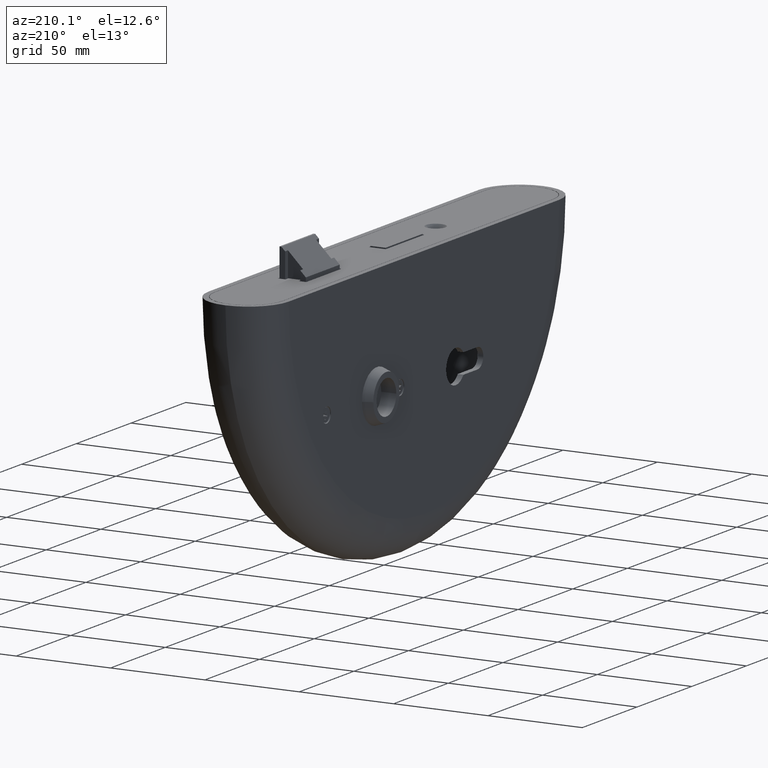
[diagram: clean part render]
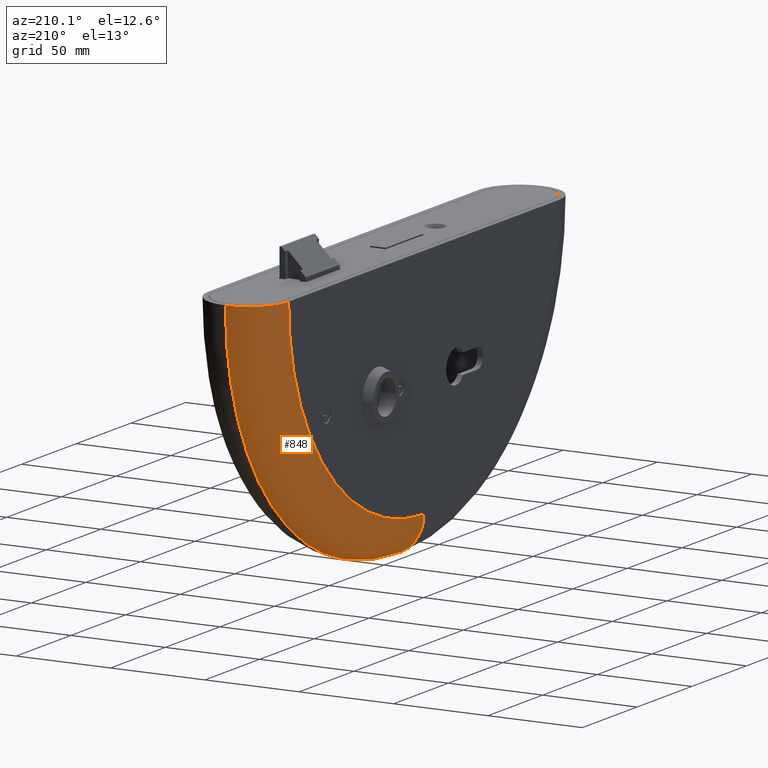
[diagram: same view with one face highlighted and labeled with its STEP entity id]
A machine part, auxiliary view. The second image highlights one B-rep face of the part: STEP entity #848.
In plain terms, the highlighted toroidal blend (fillet) surface has major radius 123.8 mm and minor (blend) radius 21.2 mm.
Its self-contained STEP definition (entity closure, byte-faithful):
#614 = DIRECTION ( 'NONE',  ( 0.000000000000000000, 1.776356839400250465E-15, -1.000000000000000000 ) ) ;
#848 = ADVANCED_FACE ( 'NONE', ( #6842 ), #15396, .T. ) ;
#1339 = EDGE_CURVE ( 'NONE', #6329, #5088, #2787, .T. ) ;
#1718 = CARTESIAN_POINT ( 'NONE',  ( 0.000000000000000000, 0.000000000000000000, -145.0000000000000000 ) ) ;
#1947 = AXIS2_PLACEMENT_3D ( 'NONE', #8388, #7349, #9934 ) ;
#2036 = CARTESIAN_POINT ( 'NONE',  ( -21.19999999999999929, 0.000000000000000000, -123.7999999999999972 ) ) ;
#2578 = DIRECTION ( 'NONE',  ( 0.000000000000000000, 0.000000000000000000, -1.000000000000000000 ) ) ;
#2687 = ORIENTED_EDGE ( 'NONE', *, *, #9487, .F. ) ;
#2787 = CIRCLE ( 'NONE', #15707, 123.7999999999999972 ) ;
#3183 = DIRECTION ( 'NONE',  ( -1.000000000000000000, -0.000000000000000000, -0.000000000000000000 ) ) ;
#3243 = CARTESIAN_POINT ( 'NONE',  ( 0.000000000000000000, 0.000000000000000000, -123.7999999999999972 ) ) ;
#5088 = VERTEX_POINT ( 'NONE', #2036 ) ;
#5225 = VERTEX_POINT ( 'NONE', #9985 ) ;
#5821 = AXIS2_PLACEMENT_3D ( 'NONE', #9965, #6427, #2578 ) ;
#6329 = VERTEX_POINT ( 'NONE', #14056 ) ;
#6387 = AXIS2_PLACEMENT_3D ( 'NONE', #3243, #7027, #16127 ) ;
#6427 = DIRECTION ( 'NONE',  ( 1.000000000000000000, 0.000000000000000000, 0.000000000000000000 ) ) ;
#6615 = CIRCLE ( 'NONE', #6387, 21.19999999999999574 ) ;
#6842 = FACE_OUTER_BOUND ( 'NONE', #12942, .T. ) ;
#7027 = DIRECTION ( 'NONE',  ( 0.000000000000000000, -1.000000000000000000, 0.000000000000000000 ) ) ;
#7133 = CARTESIAN_POINT ( 'NONE',  ( -21.19999999999999929, 0.000000000000000000, 0.000000000000000000 ) ) ;
#7349 = DIRECTION ( 'NONE',  ( -0.000000000000000000, -2.871266442996094569E-16, 1.000000000000000000 ) ) ;
#8388 = CARTESIAN_POINT ( 'NONE',  ( 0.000000000000000000, 123.7999999999999972, 3.554627856429165428E-14 ) ) ;
#9071 = AXIS2_PLACEMENT_3D ( 'NONE', #14885, #3183, #614 ) ;
#9487 = EDGE_CURVE ( 'NONE', #5088, #15167, #6615, .T. ) ;
#9934 = DIRECTION ( 'NONE',  ( 0.000000000000000000, 1.000000000000000000, 2.871266442996094569E-16 ) ) ;
#9965 = CARTESIAN_POINT ( 'NONE',  ( 0.000000000000000000, 0.000000000000000000, 0.000000000000000000 ) ) ;
#9985 = CARTESIAN_POINT ( 'NONE',  ( 0.000000000000000000, 145.0000000000000000, 5.551115123125782702E-14 ) ) ;
#11033 = ORIENTED_EDGE ( 'NONE', *, *, #11428, .T. ) ;
#11076 = CIRCLE ( 'NONE', #1947, 21.19999999999999574 ) ;
#11428 = EDGE_CURVE ( 'NONE', #5225, #15167, #11895, .T. ) ;
#11895 = CIRCLE ( 'NONE', #9071, 145.0000000000000000 ) ;
#12218 = EDGE_CURVE ( 'NONE', #5225, #6329, #11076, .T. ) ;
#12437 = DIRECTION ( 'NONE',  ( -1.000000000000000000, -0.000000000000000000, -0.000000000000000000 ) ) ;
#12942 = EDGE_LOOP ( 'NONE', ( #2687, #15278, #13610, #11033 ) ) ;
#13610 = ORIENTED_EDGE ( 'NONE', *, *, #12218, .F. ) ;
#14056 = CARTESIAN_POINT ( 'NONE',  ( -21.19999999999999929, 123.7999999999999972, 4.942406637210611103E-14 ) ) ;
#14885 = CARTESIAN_POINT ( 'NONE',  ( 0.000000000000000000, 0.000000000000000000, 0.000000000000000000 ) ) ;
#15167 = VERTEX_POINT ( 'NONE', #1718 ) ;
#15278 = ORIENTED_EDGE ( 'NONE', *, *, #1339, .F. ) ;
#15396 = TOROIDAL_SURFACE ( 'NONE', #5821, 123.7999999999999972, 21.19999999999999929 ) ;
#15707 = AXIS2_PLACEMENT_3D ( 'NONE', #7133, #12437, #16400 ) ;
#16127 = DIRECTION ( 'NONE',  ( 0.000000000000000000, 0.000000000000000000, -1.000000000000000000 ) ) ;
#16400 = DIRECTION ( 'NONE',  ( 0.000000000000000000, 1.776356839400250465E-15, -1.000000000000000000 ) ) ;